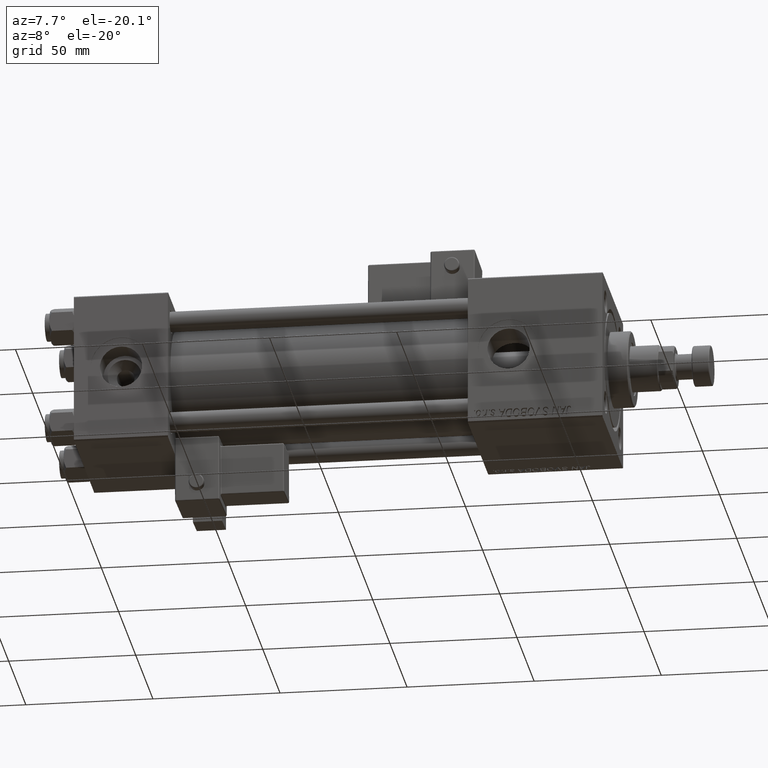
[diagram: clean part render]
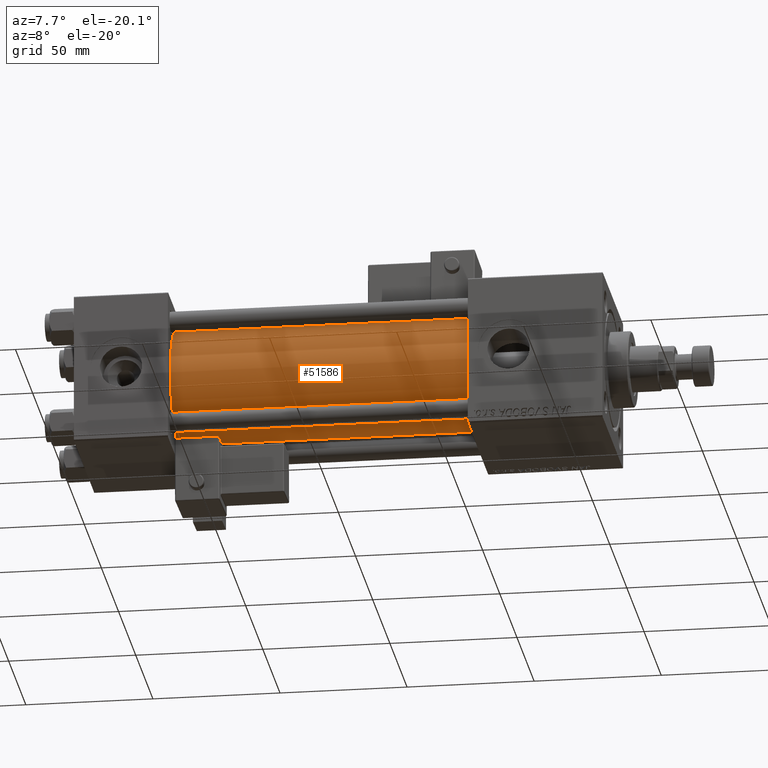
[diagram: same view with one face highlighted and labeled with its STEP entity id]
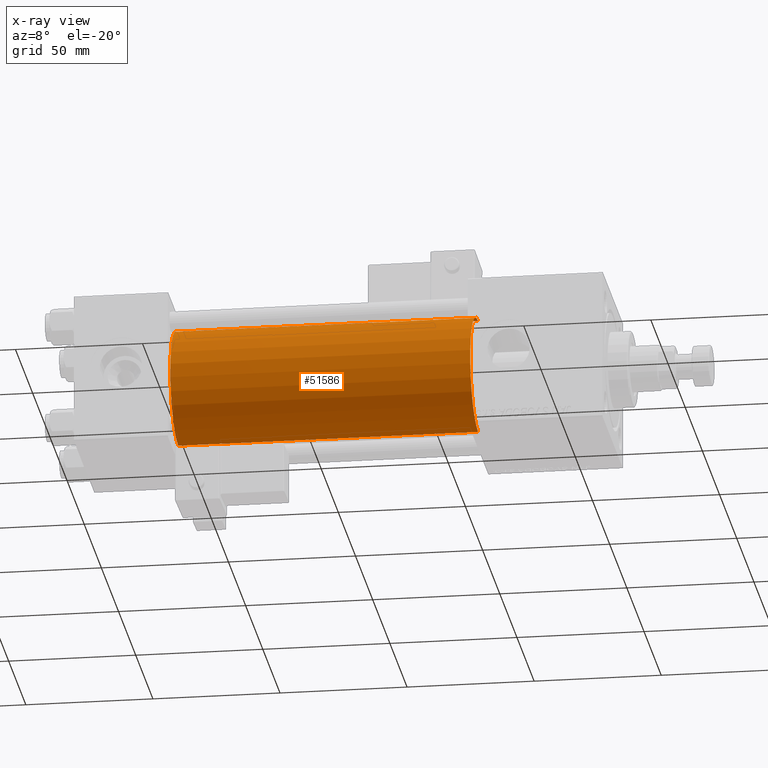
[diagram: x-ray of the same camera — body ghosted, the highlighted face saturated]
A machine part, auxiliary view. The second image highlights one B-rep face of the part: STEP entity #51586.
The next image is the same camera in x-ray: the body ghosted, the highlighted face saturated — about 0% of this face is hidden behind the body in this view.
In plain terms, the highlighted cylindrical surface (partial cylindrical patch) has radius 23 mm, axis along (-1, -0, -0).
Its self-contained STEP definition (entity closure, byte-faithful):
#698 = DIRECTION ( 'NONE',  ( 0.000000000000000000, 0.000000000000000000, -1.000000000000000000 ) ) ;
#731 = CARTESIAN_POINT ( 'NONE',  ( 155.0000000000000000, 2.146024240737016609E-16, -23.00000000000000000 ) ) ;
#1245 = CARTESIAN_POINT ( 'NONE',  ( 37.00000000000000711, -2.602085213965210642E-15, 23.00000000000000000 ) ) ;
#1727 = VECTOR ( 'NONE', #39794, 1000.000000000000000 ) ;
#4322 = DIRECTION ( 'NONE',  ( 1.000000000000000000, 0.000000000000000000, 0.000000000000000000 ) ) ;
#8221 = EDGE_LOOP ( 'NONE', ( #8410, #16651, #39007, #14965 ) ) ;
#8410 = ORIENTED_EDGE ( 'NONE', *, *, #47216, .F. ) ;
#10003 = CIRCLE ( 'NONE', #43668, 23.00000000000000000 ) ;
#10352 = CARTESIAN_POINT ( 'NONE',  ( 155.0000000000000000, 2.146024240737016609E-16, -23.00000000000000000 ) ) ;
#12193 = FACE_OUTER_BOUND ( 'NONE', #8221, .T. ) ;
#12565 = DIRECTION ( 'NONE',  ( 1.000000000000000000, -0.000000000000000000, 0.000000000000000000 ) ) ;
#14123 = CARTESIAN_POINT ( 'NONE',  ( 155.0000000000000000, -2.602085213965210642E-15, 23.00000000000000000 ) ) ;
#14965 = ORIENTED_EDGE ( 'NONE', *, *, #46176, .T. ) ;
#15803 = DIRECTION ( 'NONE',  ( -1.000000000000000000, -0.000000000000000000, -0.000000000000000000 ) ) ;
#16651 = ORIENTED_EDGE ( 'NONE', *, *, #27659, .F. ) ;
#16715 = DIRECTION ( 'NONE',  ( 0.000000000000000000, 0.000000000000000000, 1.000000000000000000 ) ) ;
#17959 = VERTEX_POINT ( 'NONE', #1245 ) ;
#18777 = CARTESIAN_POINT ( 'NONE',  ( 37.00000000000000711, 2.146024240737016609E-16, -23.00000000000000000 ) ) ;
#23660 = LINE ( 'NONE', #10352, #1727 ) ;
#27659 = EDGE_CURVE ( 'NONE', #48679, #45806, #10003, .T. ) ;
#29826 = EDGE_CURVE ( 'NONE', #48679, #17959, #43788, .T. ) ;
#33564 = CYLINDRICAL_SURFACE ( 'NONE', #52234, 23.00000000000000000 ) ;
#36823 = VERTEX_POINT ( 'NONE', #18777 ) ;
#37180 = CARTESIAN_POINT ( 'NONE',  ( 155.0000000000000000, -2.602085213965210642E-15, 0.000000000000000000 ) ) ;
#37549 = CARTESIAN_POINT ( 'NONE',  ( 37.00000000000000711, -2.602085213965210642E-15, 0.000000000000000000 ) ) ;
#38118 = CIRCLE ( 'NONE', #45163, 23.00000000000000000 ) ;
#38763 = CARTESIAN_POINT ( 'NONE',  ( 155.0000000000000000, -2.602085213965210642E-15, 0.000000000000000000 ) ) ;
#39007 = ORIENTED_EDGE ( 'NONE', *, *, #29826, .T. ) ;
#39794 = DIRECTION ( 'NONE',  ( -1.000000000000000000, -0.000000000000000000, -0.000000000000000000 ) ) ;
#43668 = AXIS2_PLACEMENT_3D ( 'NONE', #38763, #4322, #698 ) ;
#43788 = LINE ( 'NONE', #47687, #45538 ) ;
#45163 = AXIS2_PLACEMENT_3D ( 'NONE', #37549, #12565, #16715 ) ;
#45538 = VECTOR ( 'NONE', #48234, 1000.000000000000000 ) ;
#45806 = VERTEX_POINT ( 'NONE', #731 ) ;
#46176 = EDGE_CURVE ( 'NONE', #17959, #36823, #38118, .T. ) ;
#46309 = DIRECTION ( 'NONE',  ( 0.000000000000000000, 0.000000000000000000, 1.000000000000000000 ) ) ;
#47216 = EDGE_CURVE ( 'NONE', #45806, #36823, #23660, .T. ) ;
#47687 = CARTESIAN_POINT ( 'NONE',  ( 155.0000000000000000, -2.602085213965210642E-15, 23.00000000000000000 ) ) ;
#48234 = DIRECTION ( 'NONE',  ( -1.000000000000000000, -0.000000000000000000, -0.000000000000000000 ) ) ;
#48679 = VERTEX_POINT ( 'NONE', #14123 ) ;
#51586 = ADVANCED_FACE ( 'NONE', ( #12193 ), #33564, .T. ) ;
#52234 = AXIS2_PLACEMENT_3D ( 'NONE', #37180, #15803, #46309 ) ;